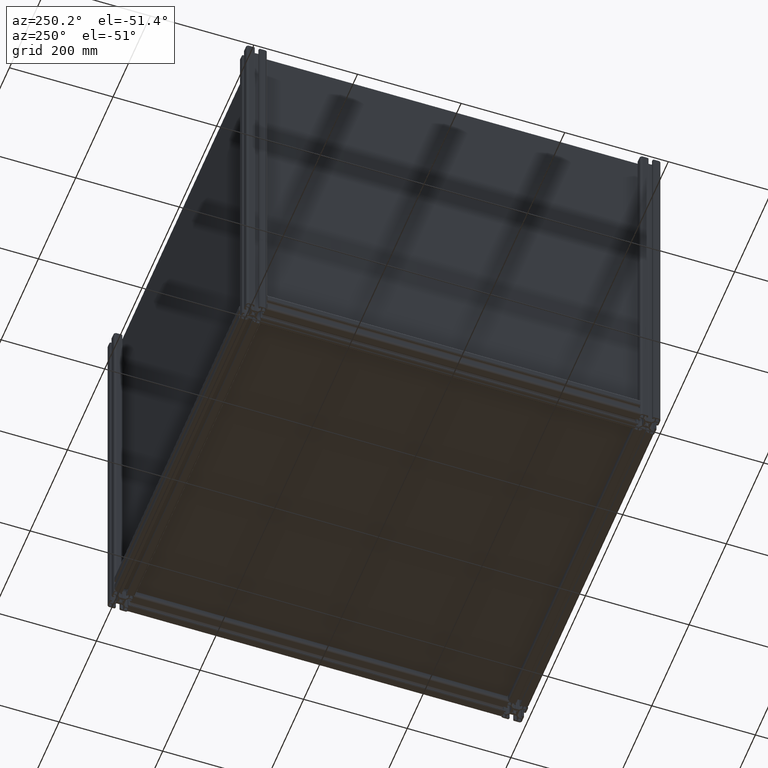
[diagram: clean part render]
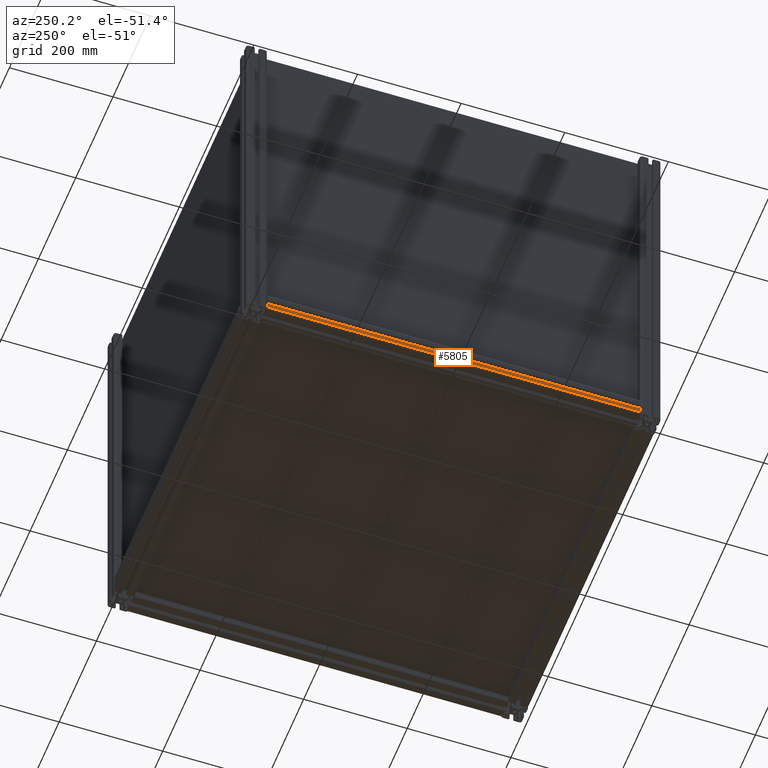
[diagram: same view with one face highlighted and labeled with its STEP entity id]
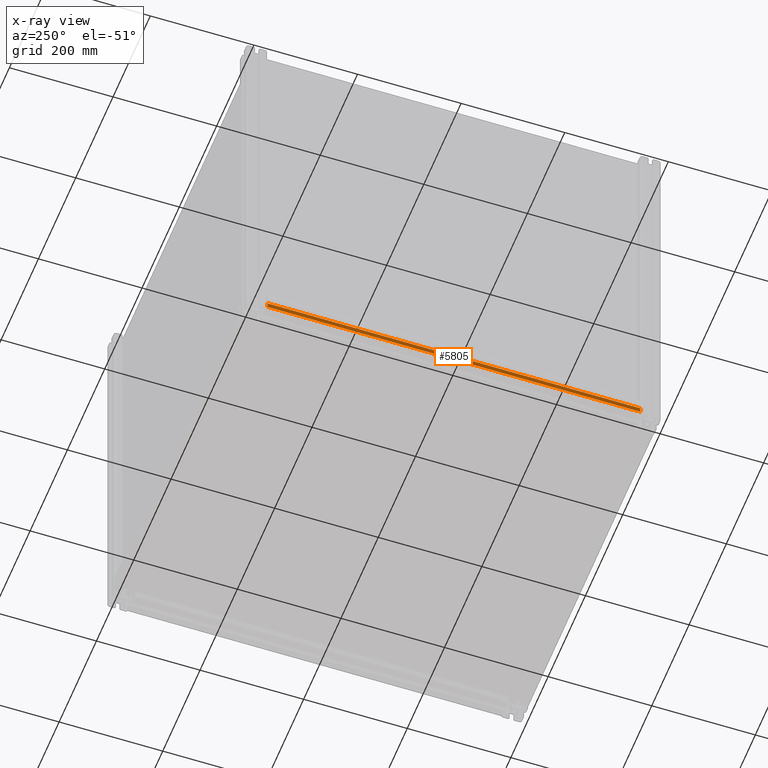
[diagram: x-ray of the same camera — body ghosted, the highlighted face saturated]
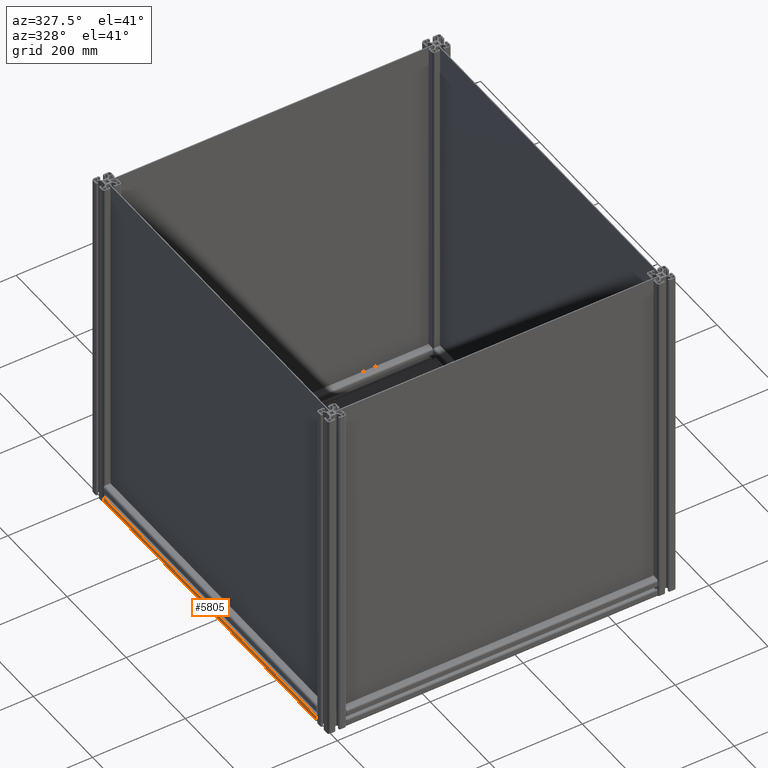
[diagram: same view with one face highlighted and labeled with its STEP entity id]
A machine part, auxiliary view. The second image highlights one B-rep face of the part: STEP entity #5805.
The next image is the same camera in x-ray: the body ghosted, the highlighted face saturated — about 0% of this face is hidden behind the body in this view.
A second angle (auxiliary view) of the same face is appended — the face is thin or edge-on in the first view.
In plain terms, the highlighted planar face has unit normal (1, 0, 0).
Its self-contained STEP definition (entity closure, byte-faithful):
#30 = VECTOR ( 'NONE', #10493, 1000.000000000000000 ) ;
#1588 = ORIENTED_EDGE ( 'NONE', *, *, #9877, .T. ) ;
#1769 = CARTESIAN_POINT ( 'NONE',  ( -20.00000000000180123, -5.100000000000360245, 0.000000000000000000 ) ) ;
#2039 = DIRECTION ( 'NONE',  ( 1.000000000000000000, 0.000000000000000000, 0.000000000000000000 ) ) ;
#2191 = FACE_OUTER_BOUND ( 'NONE', #3897, .T. ) ;
#3407 = EDGE_CURVE ( 'NONE', #9816, #12333, #4268, .T. ) ;
#3776 = CARTESIAN_POINT ( 'NONE',  ( -20.00000000000180123, 17.00000000000180123, 720.0000000000000000 ) ) ;
#3897 = EDGE_LOOP ( 'NONE', ( #7316, #14985, #1588, #7314 ) ) ;
#4268 = LINE ( 'NONE', #6019, #15072 ) ;
#4339 = CARTESIAN_POINT ( 'NONE',  ( -20.00000000000180123, -5.100000000000360245, 720.0000000000000000 ) ) ;
#5522 = LINE ( 'NONE', #1769, #30 ) ;
#5596 = DIRECTION ( 'NONE',  ( 0.000000000000000000, 1.000000000000000000, 0.000000000000000000 ) ) ;
#5805 = ADVANCED_FACE ( 'NONE', ( #2191 ), #12253, .F. ) ;
#5923 = VECTOR ( 'NONE', #13224, 1000.000000000000000 ) ;
#6019 = CARTESIAN_POINT ( 'NONE',  ( -20.00000000000089884, -15.50000000000129852, 720.0000000000000000 ) ) ;
#7170 = VERTEX_POINT ( 'NONE', #11311 ) ;
#7314 = ORIENTED_EDGE ( 'NONE', *, *, #3407, .F. ) ;
#7316 = ORIENTED_EDGE ( 'NONE', *, *, #14271, .F. ) ;
#7845 = VERTEX_POINT ( 'NONE', #10191 ) ;
#8659 = LINE ( 'NONE', #15564, #8871 ) ;
#8871 = VECTOR ( 'NONE', #9310, 1000.000000000000000 ) ;
#9310 = DIRECTION ( 'NONE',  ( 0.000000000000000000, 0.000000000000000000, 1.000000000000000000 ) ) ;
#9775 = DIRECTION ( 'NONE',  ( 0.000000000000000000, 0.000000000000000000, -1.000000000000000000 ) ) ;
#9816 = VERTEX_POINT ( 'NONE', #15208 ) ;
#9877 = EDGE_CURVE ( 'NONE', #7170, #12333, #5522, .T. ) ;
#10191 = CARTESIAN_POINT ( 'NONE',  ( -20.00000000000180123, -5.100000000000370903, 720.0000000000000000 ) ) ;
#10493 = DIRECTION ( 'NONE',  ( 0.000000000000000000, -1.000000000000000000, 0.000000000000000000 ) ) ;
#10709 = CARTESIAN_POINT ( 'NONE',  ( -20.00000000000135003, -15.50000000000129852, 0.000000000000000000 ) ) ;
#11311 = CARTESIAN_POINT ( 'NONE',  ( -20.00000000000180123, -5.100000000000370903, 0.000000000000000000 ) ) ;
#11427 = LINE ( 'NONE', #3776, #5923 ) ;
#11993 = AXIS2_PLACEMENT_3D ( 'NONE', #4339, #2039, #5596 ) ;
#12253 = PLANE ( 'NONE',  #11993 ) ;
#12333 = VERTEX_POINT ( 'NONE', #10709 ) ;
#13224 = DIRECTION ( 'NONE',  ( 0.000000000000000000, -1.000000000000000000, 0.000000000000000000 ) ) ;
#14271 = EDGE_CURVE ( 'NONE', #7845, #9816, #11427, .T. ) ;
#14985 = ORIENTED_EDGE ( 'NONE', *, *, #16161, .F. ) ;
#15072 = VECTOR ( 'NONE', #9775, 1000.000000000000000 ) ;
#15208 = CARTESIAN_POINT ( 'NONE',  ( -20.00000000000135003, -15.50000000000129852, 720.0000000000000000 ) ) ;
#15564 = CARTESIAN_POINT ( 'NONE',  ( -20.00000000000180123, -5.100000000000370903, 720.0000000000000000 ) ) ;
#16161 = EDGE_CURVE ( 'NONE', #7170, #7845, #8659, .T. ) ;